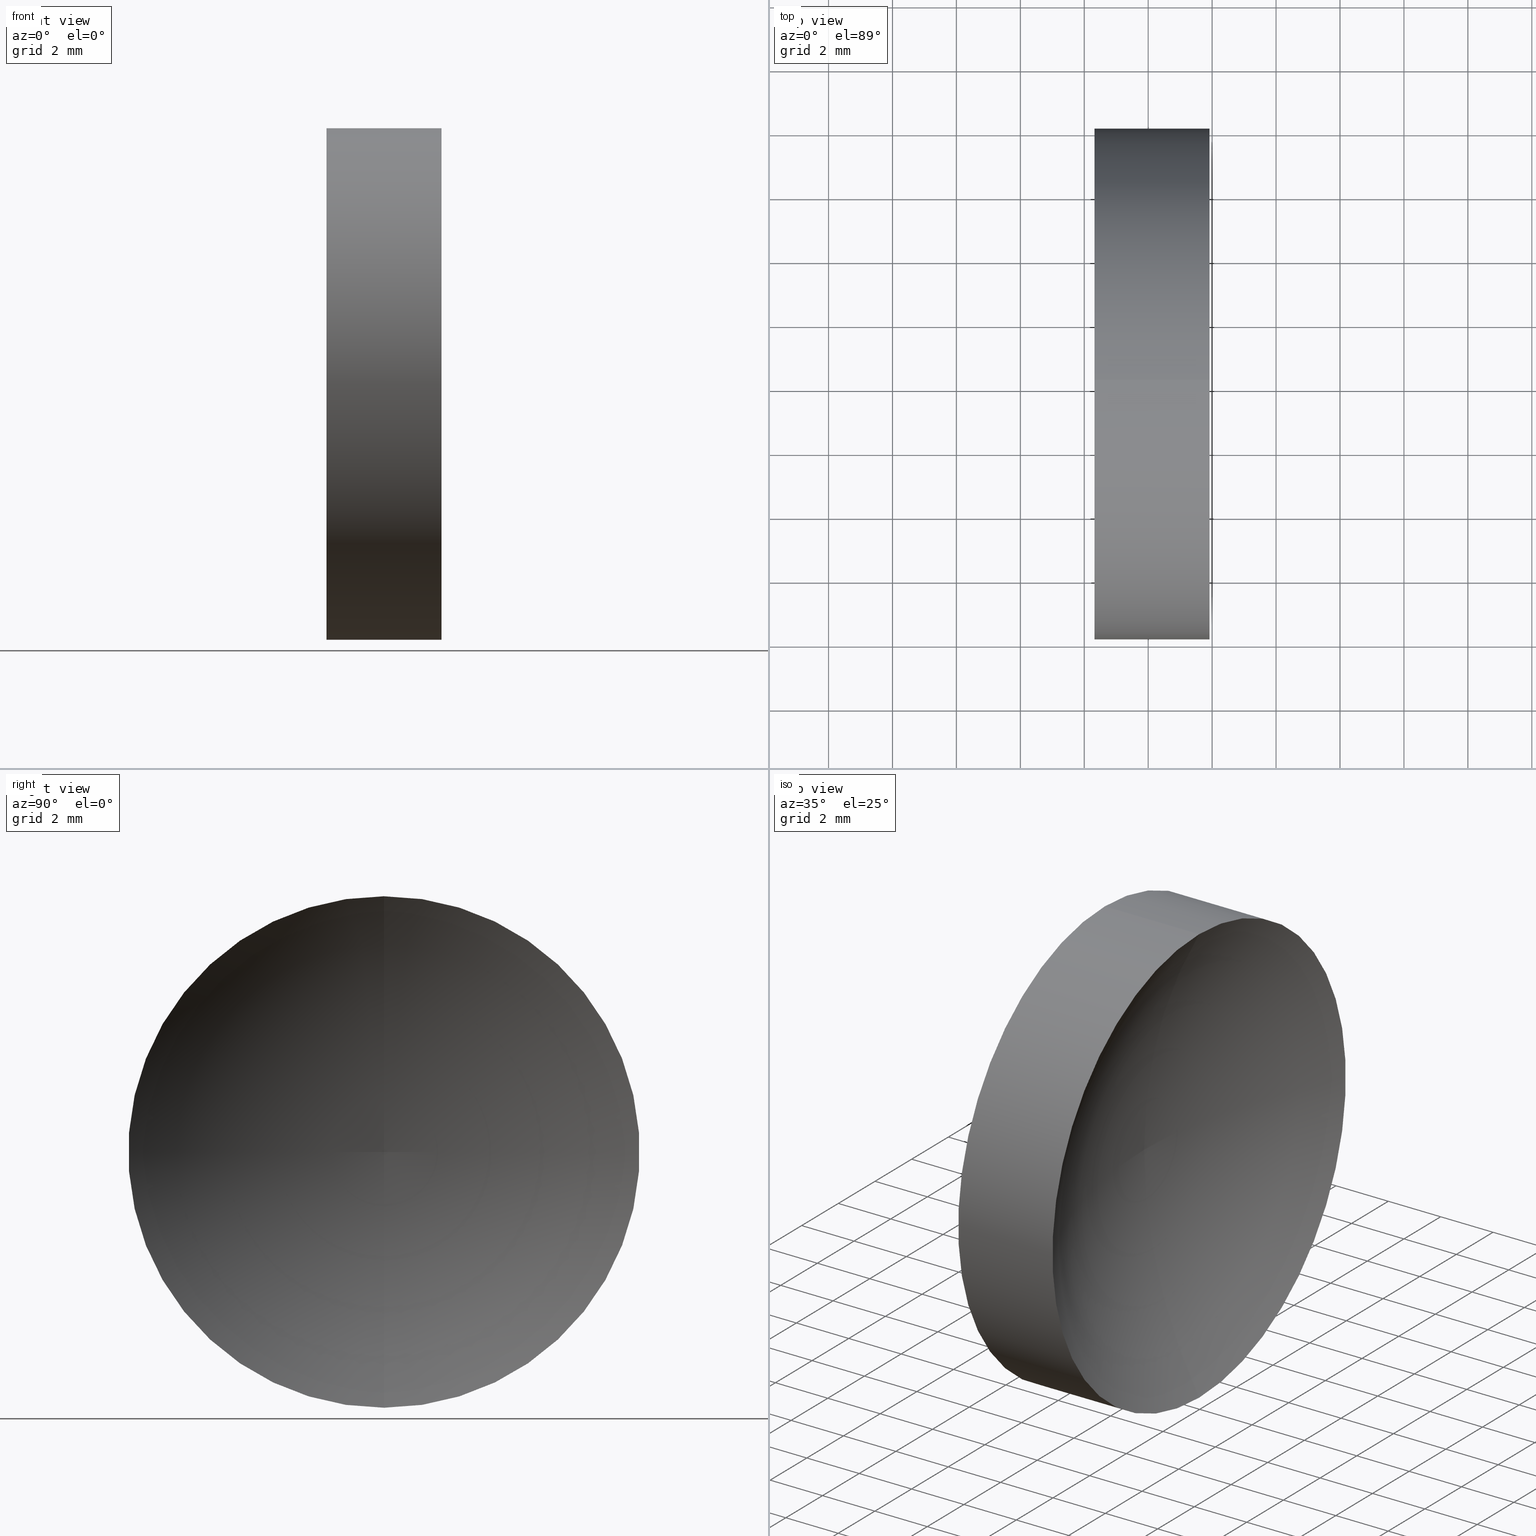
[diagram: canonical four-view strip — front | top / right | iso, engineering-drawing reading convention]
A machine part, canonical four-view strip (front | top / right | iso — engineering-drawing reading convention). The complete STEP part file that produces these views, byte-faithful:
ISO-10303-21;
HEADER;
FILE_DESCRIPTION (( 'STEP AP214' ),
    '1' );
FILE_NAME ('120021.STEP',
    '2019-06-14T07:18:16',
    ( '' ),
    ( '' ),
    'SwSTEP 2.0',
    'SolidWorks 2016',
    '' );
FILE_SCHEMA (( 'AUTOMOTIVE_DESIGN' ));
ENDSEC;

DATA;
#1 = CARTESIAN_POINT ( 'NONE',  ( 47.91777018609677400, 26.08904114919495900, -8.000000000000001800 ) ) ;
#2 = DIRECTION ( 'NONE',  ( 0.0000000000000000000, -2.132419761495766100E-016, 1.000000000000000000 ) ) ;
#3 = DIRECTION ( 'NONE',  ( -1.000000000000000000, -0.0000000000000000000, -0.0000000000000000000 ) ) ;
#4 = DIRECTION ( 'NONE',  ( -1.000000000000000000, -0.0000000000000000000, -0.0000000000000000000 ) ) ;
#5 =( NAMED_UNIT ( * ) PLANE_ANGLE_UNIT ( ) SI_UNIT ( $, .RADIAN. ) );
#6 =( NAMED_UNIT ( * ) PLANE_ANGLE_UNIT ( ) SI_UNIT ( $, .RADIAN. ) );
#7 = STYLED_ITEM ( 'NONE', ( #14 ), #103 ) ;
#8 = CARTESIAN_POINT ( 'NONE',  ( 47.91777018609677400, 26.08904114919495900, 8.000000000000001800 ) ) ;
#9 = CARTESIAN_POINT ( 'NONE',  ( 0.0000000000000000000, 0.0000000000000000000, 0.0000000000000000000 ) ) ;
#10 = DIRECTION ( 'NONE',  ( -1.000000000000000000, -0.0000000000000000000, -0.0000000000000000000 ) ) ;
#11 = EDGE_LOOP ( 'NONE', ( #97, #88, #24 ) ) ;
#12 = UNCERTAINTY_MEASURE_WITH_UNIT (LENGTH_MEASURE( 1.000000000000000100E-005 ), #144, 'distance_accuracy_value', 'NONE');
#13 = PRODUCT_DEFINITION ( 'δ֪', '', #166, #73 ) ;
#14 = PRESENTATION_STYLE_ASSIGNMENT (( #123 ) ) ;
#15 = ORIENTED_EDGE ( 'NONE', *, *, #23, .F. ) ;
#16 = ADVANCED_FACE ( 'NONE', ( #148 ), #17, .F. ) ;
#17 = TOROIDAL_SURFACE ( 'NONE', #44, 0.005066274171350304600, 16.27000000000001400 ) ;
#18 = AXIS2_PLACEMENT_3D ( 'NONE', #22, #35, #110 ) ;
#19 = CARTESIAN_POINT ( 'NONE',  ( 44.31915269315436500, 26.08904114919495900, -8.000000000000003600 ) ) ;
#20 = ORIENTED_EDGE ( 'NONE', *, *, #61, .F. ) ;
#21 = DIRECTION ( 'NONE',  ( -1.000000000000000000, -0.0000000000000000000, -0.0000000000000000000 ) ) ;
#22 = CARTESIAN_POINT ( 'NONE',  ( 44.31915269315436500, 26.08904114919495900, 0.0000000000000000000 ) ) ;
#23 = EDGE_CURVE ( 'NONE', #41, #151, #46, .T. ) ;
#24 = ORIENTED_EDGE ( 'NONE', *, *, #90, .T. ) ;
#25 = CARTESIAN_POINT ( 'NONE',  ( 47.91777018609677400, 26.08904114919495900, 0.0000000000000000000 ) ) ;
#26 = ORIENTED_EDGE ( 'NONE', *, *, #114, .F. ) ;
#27 = DIRECTION ( 'NONE',  ( 0.0000000000000000000, 0.0000000000000000000, 1.000000000000000000 ) ) ;
#28 = AXIS2_PLACEMENT_3D ( 'NONE', #25, #10, #161 ) ;
#29 = EDGE_LOOP ( 'NONE', ( #55, #141, #91, #20 ) ) ;
#30 = EDGE_CURVE ( 'NONE', #41, #118, #82, .T. ) ;
#31 = PRODUCT_RELATED_PRODUCT_CATEGORY ( 'part', '', ( #50 ) ) ;
#32 = VECTOR ( 'NONE', #122, 1000.000000000000000 ) ;
#33 = PLANE ( 'NONE',  #18 ) ;
#34 = SURFACE_STYLE_FILL_AREA ( #116 ) ;
#35 = DIRECTION ( 'NONE',  ( 1.000000000000000000, 0.0000000000000000000, 0.0000000000000000000 ) ) ;
#36 = PRESENTATION_LAYER_ASSIGNMENT (  '', '', ( #7 ) ) ;
#37 = SHAPE_DEFINITION_REPRESENTATION ( #43, #142 ) ;
#38 = CARTESIAN_POINT ( 'NONE',  ( 44.31915269315436500, 26.08904114919495900, 8.000000000000003600 ) ) ;
#39 = PRODUCT_CONTEXT ( 'NONE', #162, 'mechanical' ) ;
#40 =( NAMED_UNIT ( * ) PLANE_ANGLE_UNIT ( ) SI_UNIT ( $, .RADIAN. ) );
#41 = VERTEX_POINT ( 'NONE', #1 ) ;
#42 = PRESENTATION_LAYER_ASSIGNMENT (  '', '', ( #101 ) ) ;
#43 = PRODUCT_DEFINITION_SHAPE ( 'NONE', 'NONE',  #13 ) ;
#44 = AXIS2_PLACEMENT_3D ( 'NONE', #99, #100, #140 ) ;
#45 = DIRECTION ( 'NONE',  ( -1.000000000000000000, -0.0000000000000000000, -0.0000000000000000000 ) ) ;
#46 = CIRCLE ( 'NONE', #52, 8.000000000000003600 ) ;
#47 = DIRECTION ( 'NONE',  ( 0.0000000000000000000, 0.0000000000000000000, 1.000000000000000000 ) ) ;
#48 = ORIENTED_EDGE ( 'NONE', *, *, #114, .T. ) ;
#49 = EDGE_CURVE ( 'NONE', #151, #134, #57, .T. ) ;
#50 = PRODUCT ( '120021', '120021', '', ( #39 ) ) ;
#51 = UNCERTAINTY_MEASURE_WITH_UNIT (LENGTH_MEASURE( 1.000000000000000100E-005 ), #86, 'distance_accuracy_value', 'NONE');
#52 = AXIS2_PLACEMENT_3D ( 'NONE', #68, #4, #69 ) ;
#53 = EDGE_LOOP ( 'NONE', ( #48, #154 ) ) ;
#54 = FACE_OUTER_BOUND ( 'NONE', #150, .T. ) ;
#55 = ORIENTED_EDGE ( 'NONE', *, *, #117, .F. ) ;
#56 = CARTESIAN_POINT ( 'NONE',  ( 42.44986111413682300, 26.08904114919495900, -8.000000000000003600 ) ) ;
#57 = LINE ( 'NONE', #143, #163 ) ;
#58 = DIRECTION ( 'NONE',  ( 0.0000000000000000000, 0.0000000000000000000, -1.000000000000000000 ) ) ;
#59 = CARTESIAN_POINT ( 'NONE',  ( 62.08794783916831500, 26.08904114919495900, 0.0000000000000000000 ) ) ;
#60 = DIRECTION ( 'NONE',  ( 0.0000000000000000000, 0.0000000000000000000, 1.000000000000000000 ) ) ;
#61 = EDGE_CURVE ( 'NONE', #109, #134, #129, .T. ) ;
#62 =( LENGTH_UNIT ( ) NAMED_UNIT ( * ) SI_UNIT ( .MILLI., .METRE. ) );
#63 = ORIENTED_EDGE ( 'NONE', *, *, #90, .F. ) ;
#64 = DIRECTION ( 'NONE',  ( -1.000000000000000000, -0.0000000000000000000, -0.0000000000000000000 ) ) ;
#65 = COLOUR_RGB ( '',1.000000000000000000, 1.000000000000000000, 1.000000000000000000 ) ;
#66 =( GEOMETRIC_REPRESENTATION_CONTEXT ( 3 ) GLOBAL_UNCERTAINTY_ASSIGNED_CONTEXT ( ( #79 ) ) GLOBAL_UNIT_ASSIGNED_CONTEXT ( ( #62, #6, #71 ) ) REPRESENTATION_CONTEXT ( 'NONE', 'WORKASPACE' ) );
#67 = AXIS2_PLACEMENT_3D ( 'NONE', #59, #45, #104 ) ;
#68 = CARTESIAN_POINT ( 'NONE',  ( 47.91777018609677400, 26.08904114919495900, 0.0000000000000000000 ) ) ;
#69 = DIRECTION ( 'NONE',  ( 0.0000000000000000000, 0.0000000000000000000, 1.000000000000000000 ) ) ;
#70 = SURFACE_SIDE_STYLE ('',( #34 ) ) ;
#71 =( NAMED_UNIT ( * ) SI_UNIT ( $, .STERADIAN. ) SOLID_ANGLE_UNIT ( ) );
#72 = APPLICATION_PROTOCOL_DEFINITION ( 'draft international standard', 'automotive_design', 1998, #84 ) ;
#73 = PRODUCT_DEFINITION_CONTEXT ( 'detailed design', #84, 'design' ) ;
#74 = AXIS2_PLACEMENT_3D ( 'NONE', #108, #156, #2 ) ;
#75 = ADVANCED_FACE ( 'NONE', ( #89 ), #33, .F. ) ;
#76 = MECHANICAL_DESIGN_GEOMETRIC_PRESENTATION_REPRESENTATION (  '', ( #101 ), #85 ) ;
#77 = ORIENTED_EDGE ( 'NONE', *, *, #49, .F. ) ;
#78 = ORIENTED_EDGE ( 'NONE', *, *, #117, .T. ) ;
#79 = UNCERTAINTY_MEASURE_WITH_UNIT (LENGTH_MEASURE( 1.000000000000000100E-005 ), #62, 'distance_accuracy_value', 'NONE');
#80 = DIRECTION ( 'NONE',  ( 0.0000000000000000000, 0.0000000000000000000, 1.000000000000000000 ) ) ;
#81 = CARTESIAN_POINT ( 'NONE',  ( 62.08794783916831500, 26.08904114919495900, 0.005066274171350304600 ) ) ;
#82 = CIRCLE ( 'NONE', #74, 16.27000000000001400 ) ;
#83 =( NAMED_UNIT ( * ) SI_UNIT ( $, .STERADIAN. ) SOLID_ANGLE_UNIT ( ) );
#84 = APPLICATION_CONTEXT ( 'automotive_design' ) ;
#85 =( GEOMETRIC_REPRESENTATION_CONTEXT ( 3 ) GLOBAL_UNCERTAINTY_ASSIGNED_CONTEXT ( ( #51 ) ) GLOBAL_UNIT_ASSIGNED_CONTEXT ( ( #86, #40, #83 ) ) REPRESENTATION_CONTEXT ( 'NONE', 'WORKASPACE' ) );
#86 =( LENGTH_UNIT ( ) NAMED_UNIT ( * ) SI_UNIT ( .MILLI., .METRE. ) );
#87 = CARTESIAN_POINT ( 'NONE',  ( 42.44986111413682300, 26.08904114919495900, 0.0000000000000000000 ) ) ;
#88 = ORIENTED_EDGE ( 'NONE', *, *, #125, .F. ) ;
#89 = FACE_OUTER_BOUND ( 'NONE', #53, .T. ) ;
#90 = EDGE_CURVE ( 'NONE', #151, #118, #112, .T. ) ;
#91 = ORIENTED_EDGE ( 'NONE', *, *, #49, .T. ) ;
#92 = FACE_OUTER_BOUND ( 'NONE', #29, .T. ) ;
#93 = ORIENTED_EDGE ( 'NONE', *, *, #125, .T. ) ;
#94 = SURFACE_STYLE_FILL_AREA ( #135 ) ;
#95 = CYLINDRICAL_SURFACE ( 'NONE', #106, 8.000000000000003600 ) ;
#96 = AXIS2_PLACEMENT_3D ( 'NONE', #81, #136, #58 ) ;
#97 = ORIENTED_EDGE ( 'NONE', *, *, #30, .F. ) ;
#98 = CARTESIAN_POINT ( 'NONE',  ( 44.31915269315436500, 26.08904114919495900, 0.0000000000000000000 ) ) ;
#99 = CARTESIAN_POINT ( 'NONE',  ( 62.08794783916831500, 26.08904114919495900, 0.0000000000000000000 ) ) ;
#100 = DIRECTION ( 'NONE',  ( -1.000000000000000000, -0.0000000000000000000, -0.0000000000000000000 ) ) ;
#101 = STYLED_ITEM ( 'NONE', ( #133 ), #142 ) ;
#102 = FACE_OUTER_BOUND ( 'NONE', #11, .T. ) ;
#103 = MANIFOLD_SOLID_BREP ( '��ת1', #119 ) ;
#104 = DIRECTION ( 'NONE',  ( 0.0000000000000000000, 0.0000000000000000000, 1.000000000000000000 ) ) ;
#105 = FILL_AREA_STYLE_COLOUR ( '', #126 ) ;
#106 = AXIS2_PLACEMENT_3D ( 'NONE', #87, #64, #127 ) ;
#107 = AXIS2_PLACEMENT_3D ( 'NONE', #137, #159, #60 ) ;
#108 = CARTESIAN_POINT ( 'NONE',  ( 62.08794783916831500, 26.08904114919495900, -0.005066274171350304600 ) ) ;
#109 = VERTEX_POINT ( 'NONE', #19 ) ;
#110 = DIRECTION ( 'NONE',  ( 0.0000000000000000000, 0.0000000000000000000, -1.000000000000000000 ) ) ;
#111 = SURFACE_SIDE_STYLE ('',( #94 ) ) ;
#112 = CIRCLE ( 'NONE', #96, 16.27000000000001400 ) ;
#113 = CARTESIAN_POINT ( 'NONE',  ( 45.81794862795547400, 26.08904114919495900, 0.0000000000000000000 ) ) ;
#114 = EDGE_CURVE ( 'NONE', #134, #109, #153, .T. ) ;
#115 = APPLICATION_PROTOCOL_DEFINITION ( 'draft international standard', 'automotive_design', 1998, #162 ) ;
#116 = FILL_AREA_STYLE ('',( #105 ) ) ;
#117 = EDGE_CURVE ( 'NONE', #41, #109, #164, .T. ) ;
#118 = VERTEX_POINT ( 'NONE', #113 ) ;
#119 = CLOSED_SHELL ( 'NONE', ( #165, #16, #130, #149, #75 ) ) ;
#120 = EDGE_LOOP ( 'NONE', ( #15, #121, #63 ) ) ;
#121 = ORIENTED_EDGE ( 'NONE', *, *, #30, .T. ) ;
#122 = DIRECTION ( 'NONE',  ( -1.000000000000000000, -0.0000000000000000000, -0.0000000000000000000 ) ) ;
#123 = SURFACE_STYLE_USAGE ( .BOTH. , #111 ) ;
#124 = FILL_AREA_STYLE_COLOUR ( '', #65 ) ;
#125 = EDGE_CURVE ( 'NONE', #151, #41, #160, .T. ) ;
#126 = COLOUR_RGB ( '',1.000000000000000000, 1.000000000000000000, 1.000000000000000000 ) ;
#127 = DIRECTION ( 'NONE',  ( 0.0000000000000000000, 0.0000000000000000000, 1.000000000000000000 ) ) ;
#128 = DIRECTION ( 'NONE',  ( 1.000000000000000000, 0.0000000000000000000, 0.0000000000000000000 ) ) ;
#129 = CIRCLE ( 'NONE', #132, 8.000000000000003600 ) ;
#130 = ADVANCED_FACE ( 'NONE', ( #102 ), #158, .F. ) ;
#131 = CYLINDRICAL_SURFACE ( 'NONE', #107, 8.000000000000003600 ) ;
#132 = AXIS2_PLACEMENT_3D ( 'NONE', #98, #21, #80 ) ;
#133 = PRESENTATION_STYLE_ASSIGNMENT (( #147 ) ) ;
#134 = VERTEX_POINT ( 'NONE', #38 ) ;
#135 = FILL_AREA_STYLE ('',( #124 ) ) ;
#136 = DIRECTION ( 'NONE',  ( 0.0000000000000000000, -1.000000000000000000, 0.0000000000000000000 ) ) ;
#137 = CARTESIAN_POINT ( 'NONE',  ( 42.44986111413682300, 26.08904114919495900, 0.0000000000000000000 ) ) ;
#138 = DIRECTION ( 'NONE',  ( -1.000000000000000000, -0.0000000000000000000, -0.0000000000000000000 ) ) ;
#139 = MECHANICAL_DESIGN_GEOMETRIC_PRESENTATION_REPRESENTATION (  '', ( #7 ), #145 ) ;
#140 = DIRECTION ( 'NONE',  ( 0.0000000000000000000, 0.0000000000000000000, 1.000000000000000000 ) ) ;
#141 = ORIENTED_EDGE ( 'NONE', *, *, #23, .T. ) ;
#142 = ADVANCED_BREP_SHAPE_REPRESENTATION ( '120021', ( #103, #157 ), #66 ) ;
#143 = CARTESIAN_POINT ( 'NONE',  ( 42.44986111413682300, 26.08904114919495900, 8.000000000000003600 ) ) ;
#144 =( LENGTH_UNIT ( ) NAMED_UNIT ( * ) SI_UNIT ( .MILLI., .METRE. ) );
#145 =( GEOMETRIC_REPRESENTATION_CONTEXT ( 3 ) GLOBAL_UNCERTAINTY_ASSIGNED_CONTEXT ( ( #12 ) ) GLOBAL_UNIT_ASSIGNED_CONTEXT ( ( #144, #5, #155 ) ) REPRESENTATION_CONTEXT ( 'NONE', 'WORKASPACE' ) );
#146 = CARTESIAN_POINT ( 'NONE',  ( 44.31915269315436500, 26.08904114919495900, 0.0000000000000000000 ) ) ;
#147 = SURFACE_STYLE_USAGE ( .BOTH. , #70 ) ;
#148 = FACE_OUTER_BOUND ( 'NONE', #120, .T. ) ;
#149 = ADVANCED_FACE ( 'NONE', ( #92 ), #131, .T. ) ;
#150 = EDGE_LOOP ( 'NONE', ( #93, #78, #26, #77 ) ) ;
#151 = VERTEX_POINT ( 'NONE', #8 ) ;
#152 = AXIS2_PLACEMENT_3D ( 'NONE', #146, #138, #47 ) ;
#153 = CIRCLE ( 'NONE', #152, 8.000000000000003600 ) ;
#154 = ORIENTED_EDGE ( 'NONE', *, *, #61, .T. ) ;
#155 =( NAMED_UNIT ( * ) SI_UNIT ( $, .STERADIAN. ) SOLID_ANGLE_UNIT ( ) );
#156 = DIRECTION ( 'NONE',  ( -0.0000000000000000000, 1.000000000000000000, 1.224646799147353200E-016 ) ) ;
#157 = AXIS2_PLACEMENT_3D ( 'NONE', #9, #27, #128 ) ;
#158 = TOROIDAL_SURFACE ( 'NONE', #67, 0.005066274171350304600, 16.27000000000001400 ) ;
#159 = DIRECTION ( 'NONE',  ( -1.000000000000000000, -0.0000000000000000000, -0.0000000000000000000 ) ) ;
#160 = CIRCLE ( 'NONE', #28, 8.000000000000003600 ) ;
#161 = DIRECTION ( 'NONE',  ( 0.0000000000000000000, 0.0000000000000000000, 1.000000000000000000 ) ) ;
#162 = APPLICATION_CONTEXT ( 'automotive_design' ) ;
#163 = VECTOR ( 'NONE', #3, 1000.000000000000000 ) ;
#164 = LINE ( 'NONE', #56, #32 ) ;
#165 = ADVANCED_FACE ( 'NONE', ( #54 ), #95, .T. ) ;
#166 = PRODUCT_DEFINITION_FORMATION_WITH_SPECIFIED_SOURCE ( '�κ�', '', #50, .NOT_KNOWN. ) ;
ENDSEC;
END-ISO-10303-21;
